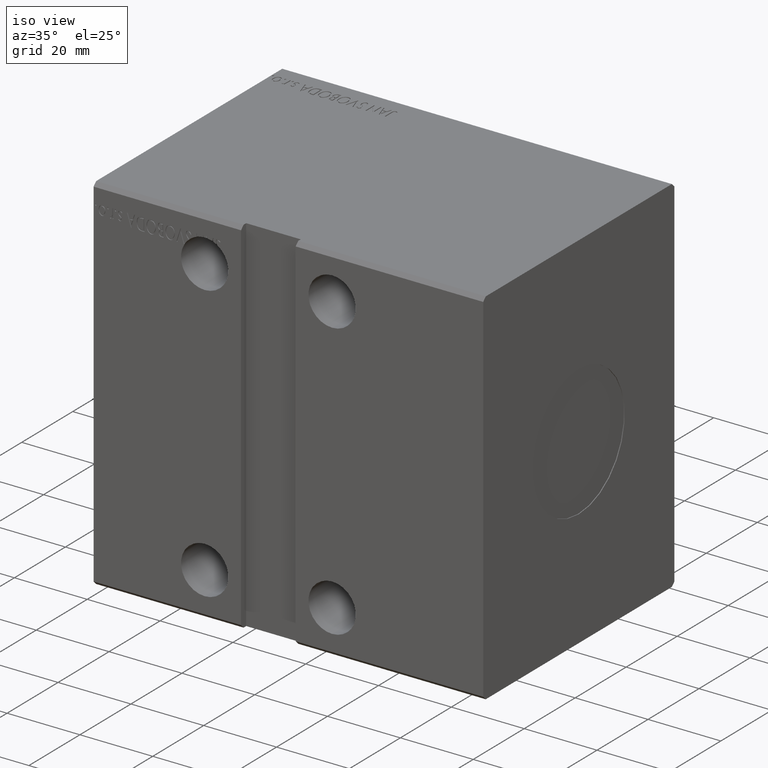
[diagram: clean part render]
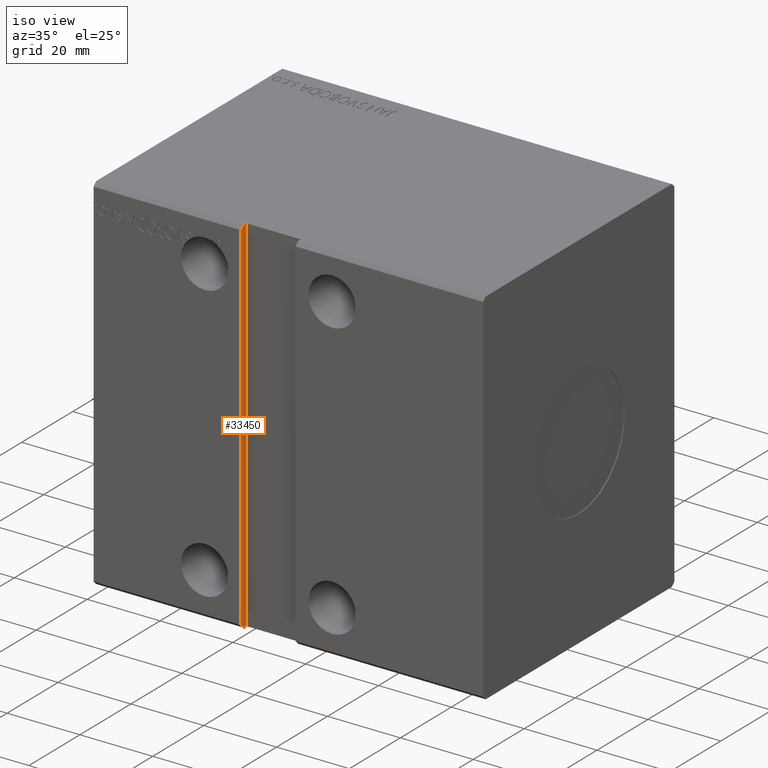
[diagram: same view with one face highlighted and labeled with its STEP entity id]
A machine part, iso view. The second image highlights one B-rep face of the part: STEP entity #33450.
In plain terms, the highlighted planar face has unit normal (-1, 0, -0).
Its self-contained STEP definition (entity closure, byte-faithful):
#496 = LINE ( 'NONE', #19574, #3873 ) ;
#1150 = EDGE_CURVE ( 'NONE', #32761, #13368, #496, .T. ) ;
#1294 = VECTOR ( 'NONE', #32490, 1000.000000000000000 ) ;
#3240 = LINE ( 'NONE', #28722, #30384 ) ;
#3325 = EDGE_CURVE ( 'NONE', #32761, #28023, #3240, .T. ) ;
#3662 = AXIS2_PLACEMENT_3D ( 'NONE', #20055, #16332, #28965 ) ;
#3873 = VECTOR ( 'NONE', #9236, 1000.000000000000000 ) ;
#4193 = EDGE_CURVE ( 'NONE', #23078, #28025, #32290, .T. ) ;
#4293 = FACE_OUTER_BOUND ( 'NONE', #39624, .T. ) ;
#5031 = VERTEX_POINT ( 'NONE', #22810 ) ;
#5046 = EDGE_CURVE ( 'NONE', #13368, #5031, #35444, .T. ) ;
#6245 = CARTESIAN_POINT ( 'NONE',  ( 40.50000000000000000, -36.50000000000001421, 49.99999999999998579 ) ) ;
#6950 = ORIENTED_EDGE ( 'NONE', *, *, #8829, .F. ) ;
#7316 = ORIENTED_EDGE ( 'NONE', *, *, #5046, .F. ) ;
#8829 = EDGE_CURVE ( 'NONE', #5031, #28025, #10967, .T. ) ;
#9236 = DIRECTION ( 'NONE',  ( 6.938893903907229610E-17, 0.000000000000000000, -1.000000000000000000 ) ) ;
#10163 = DIRECTION ( 'NONE',  ( -4.906538933386797858E-17, 0.7071067811865474617, 0.7071067811865474617 ) ) ;
#10769 = CARTESIAN_POINT ( 'NONE',  ( 40.50000000000000711, -35.50000000000001421, -50.00000000000000000 ) ) ;
#10772 = CARTESIAN_POINT ( 'NONE',  ( 40.49999999999999289, -36.50000000000001421, 49.99999999999998579 ) ) ;
#10967 = LINE ( 'NONE', #20087, #16592 ) ;
#11113 = CARTESIAN_POINT ( 'NONE',  ( 40.50000000000000711, -35.50000000000001421, -50.00000000000000000 ) ) ;
#11306 = ORIENTED_EDGE ( 'NONE', *, *, #1150, .F. ) ;
#12552 = CARTESIAN_POINT ( 'NONE',  ( 40.50000000000000000, -35.50000000000001421, 49.99999999999998579 ) ) ;
#13368 = VERTEX_POINT ( 'NONE', #11113 ) ;
#13829 = PLANE ( 'NONE',  #3662 ) ;
#14058 = DIRECTION ( 'NONE',  ( -4.906538933386780602E-17, -0.7071067811865499042, 0.7071067811865451302 ) ) ;
#15891 = DIRECTION ( 'NONE',  ( -0.000000000000000000, -1.000000000000000000, -5.507058653894625237E-17 ) ) ;
#16332 = DIRECTION ( 'NONE',  ( -1.000000000000000000, 3.821289572196897327E-33, -6.938893903907229610E-17 ) ) ;
#16518 = EDGE_CURVE ( 'NONE', #23078, #28023, #26325, .T. ) ;
#16592 = VECTOR ( 'NONE', #14058, 1000.000000000000114 ) ;
#19574 = CARTESIAN_POINT ( 'NONE',  ( 40.50000000000000000, -35.50000000000001421, 49.99999999999998579 ) ) ;
#20055 = CARTESIAN_POINT ( 'NONE',  ( 40.50000000000000000, -35.50000000000001421, 49.99999999999998579 ) ) ;
#20072 = CARTESIAN_POINT ( 'NONE',  ( 40.50000000000000000, -37.50000000000001421, 49.99999999999998579 ) ) ;
#20087 = CARTESIAN_POINT ( 'NONE',  ( 40.49999999999999289, -37.50000000000001421, -49.00000000000000000 ) ) ;
#22810 = CARTESIAN_POINT ( 'NONE',  ( 40.50000000000000000, -36.50000000000000711, -50.00000000000000000 ) ) ;
#23078 = VERTEX_POINT ( 'NONE', #39576 ) ;
#23518 = VECTOR ( 'NONE', #10163, 1000.000000000000114 ) ;
#24387 = ORIENTED_EDGE ( 'NONE', *, *, #4193, .T. ) ;
#25125 = CARTESIAN_POINT ( 'NONE',  ( 40.49999999999999289, -37.50000000000001421, -49.00000000000000000 ) ) ;
#25170 = VECTOR ( 'NONE', #36060, 1000.000000000000000 ) ;
#26325 = LINE ( 'NONE', #10772, #23518 ) ;
#28023 = VERTEX_POINT ( 'NONE', #6245 ) ;
#28025 = VERTEX_POINT ( 'NONE', #25125 ) ;
#28722 = CARTESIAN_POINT ( 'NONE',  ( 40.50000000000000000, -35.50000000000001421, 49.99999999999998579 ) ) ;
#28965 = DIRECTION ( 'NONE',  ( -6.938893903907229610E-17, 0.000000000000000000, 1.000000000000000000 ) ) ;
#30104 = ORIENTED_EDGE ( 'NONE', *, *, #16518, .F. ) ;
#30384 = VECTOR ( 'NONE', #15891, 1000.000000000000000 ) ;
#32290 = LINE ( 'NONE', #20072, #1294 ) ;
#32490 = DIRECTION ( 'NONE',  ( 6.938893903907229610E-17, 0.000000000000000000, -1.000000000000000000 ) ) ;
#32761 = VERTEX_POINT ( 'NONE', #12552 ) ;
#33359 = ORIENTED_EDGE ( 'NONE', *, *, #3325, .T. ) ;
#33450 = ADVANCED_FACE ( 'NONE', ( #4293 ), #13829, .F. ) ;
#35444 = LINE ( 'NONE', #10769, #25170 ) ;
#36060 = DIRECTION ( 'NONE',  ( -0.000000000000000000, -1.000000000000000000, -5.507058653894625237E-17 ) ) ;
#39576 = CARTESIAN_POINT ( 'NONE',  ( 40.50000000000000000, -37.50000000000001421, 48.99999999999998579 ) ) ;
#39624 = EDGE_LOOP ( 'NONE', ( #24387, #6950, #7316, #11306, #33359, #30104 ) ) ;